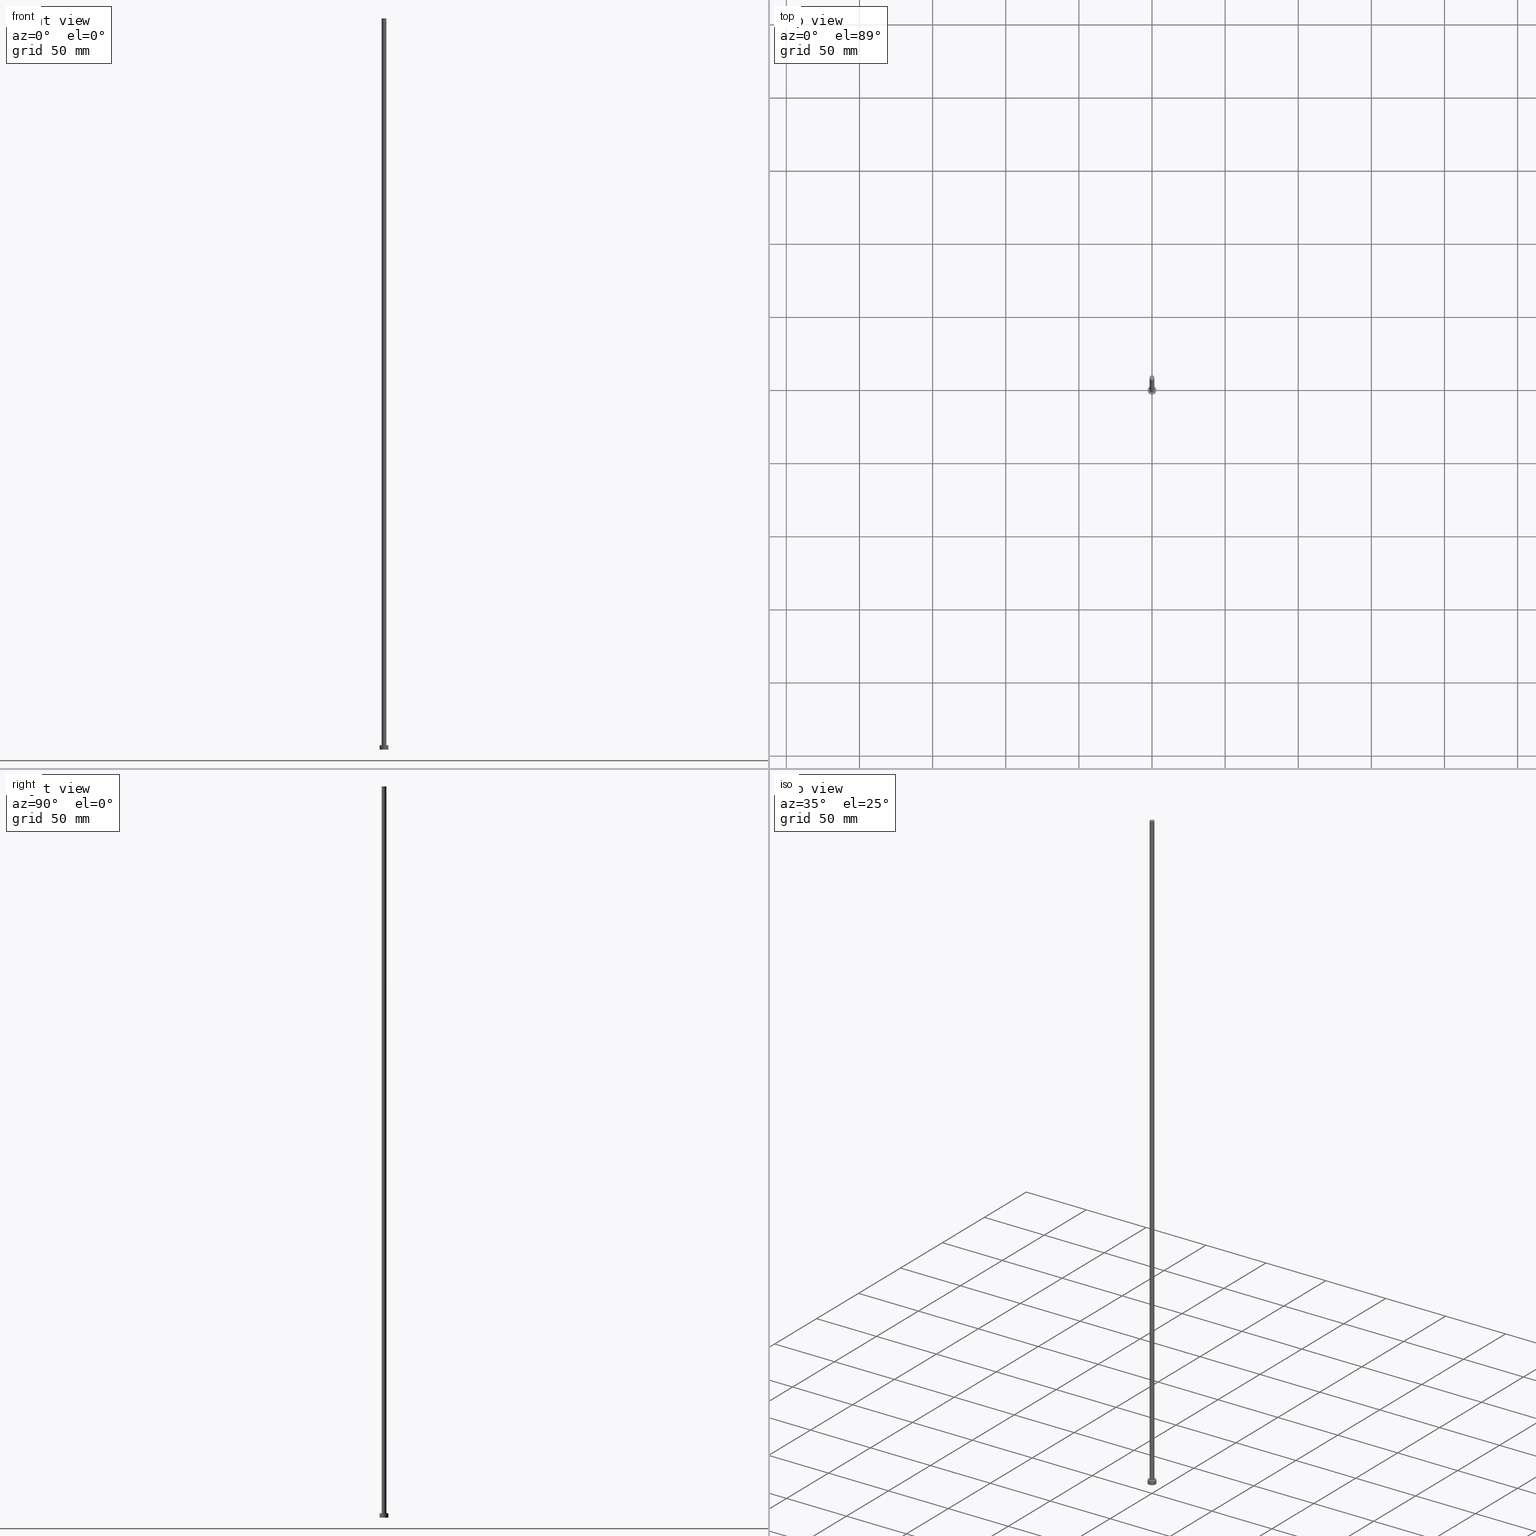
[diagram: canonical four-view strip — front | top / right | iso, engineering-drawing reading convention]
A machine part, canonical four-view strip (front | top / right | iso — engineering-drawing reading convention). The complete STEP part file that produces these views, byte-faithful:
ISO-10303-21;
HEADER;
FILE_DESCRIPTION (( 'STEP AP203' ),
    '1' );
FILE_NAME ('ac31.STEP',
    '2023-02-12T12:43:35',
    ( '' ),
    ( '' ),
    'SwSTEP 2.0',
    'SolidWorks 2019',
    '' );
FILE_SCHEMA (( 'CONFIG_CONTROL_DESIGN' ));
ENDSEC;

DATA;
#1 =( NAMED_UNIT ( * ) PLANE_ANGLE_UNIT ( ) SI_UNIT ( $, .RADIAN. ) );
#2 = LINE ( 'NONE', #32, #189 ) ;
#3 = DIRECTION ( 'NONE',  ( 1.000000000000000000, 0.000000000000000000, 0.000000000000000000 ) ) ;
#4 = LOCAL_TIME ( 13, 43, 35.00000000000000000, #50 ) ;
#5 = DIRECTION ( 'NONE',  ( -0.000000000000000000, -0.000000000000000000, -1.000000000000000000 ) ) ;
#6 = AXIS2_PLACEMENT_3D ( 'NONE', #220, #129, #8 ) ;
#7 = VECTOR ( 'NONE', #174, 1000.000000000000000 ) ;
#8 = DIRECTION ( 'NONE',  ( 1.000000000000000000, 0.000000000000000000, 0.000000000000000000 ) ) ;
#9 = DIRECTION ( 'NONE',  ( 0.000000000000000000, 0.000000000000000000, 1.000000000000000000 ) ) ;
#10 = PERSON_AND_ORGANIZATION_ROLE ( 'design_supplier' ) ;
#11 = PERSON_AND_ORGANIZATION ( #108, #245 ) ;
#12 = COORDINATED_UNIVERSAL_TIME_OFFSET ( 1, 0, .AHEAD. ) ;
#13 = EDGE_CURVE ( 'NONE', #122, #213, #21, .T. ) ;
#14 = ORIENTED_EDGE ( 'NONE', *, *, #45, .T. ) ;
#15 = EDGE_LOOP ( 'NONE', ( #249, #86 ) ) ;
#16 = AXIS2_PLACEMENT_3D ( 'NONE', #80, #103, #82 ) ;
#17 = CARTESIAN_POINT ( 'NONE',  ( 0.000000000000000000, 0.000000000000000000, 3.000000000000000000 ) ) ;
#18 = VERTEX_POINT ( 'NONE', #149 ) ;
#19 = FACE_OUTER_BOUND ( 'NONE', #104, .T. ) ;
#20 = ORIENTED_EDGE ( 'NONE', *, *, #247, .F. ) ;
#21 = CIRCLE ( 'NONE', #51, 3.000000000000000444 ) ;
#22 = CARTESIAN_POINT ( 'NONE',  ( 0.000000000000000000, 0.000000000000000000, 500.0000000000000000 ) ) ;
#23 = ORIENTED_EDGE ( 'NONE', *, *, #136, .T. ) ;
#24 = CC_DESIGN_DATE_AND_TIME_ASSIGNMENT ( #227, #160, ( #138 ) ) ;
#25 = DIRECTION ( 'NONE',  ( -0.000000000000000000, -0.000000000000000000, -1.000000000000000000 ) ) ;
#26 = DIRECTION ( 'NONE',  ( 1.000000000000000000, 0.000000000000000000, 0.000000000000000000 ) ) ;
#27 = VECTOR ( 'NONE', #5, 1000.000000000000000 ) ;
#28 = CARTESIAN_POINT ( 'NONE',  ( -1.600000000000000089, 0.000000000000000000, 500.0000000000000000 ) ) ;
#29 = DIRECTION ( 'NONE',  ( 1.000000000000000000, 0.000000000000000000, -0.000000000000000000 ) ) ;
#30 = CARTESIAN_POINT ( 'NONE',  ( 0.000000000000000000, 0.000000000000000000, 3.000000000000000000 ) ) ;
#31 = CIRCLE ( 'NONE', #199, 1.600000000000000089 ) ;
#32 = CARTESIAN_POINT ( 'NONE',  ( -3.000000000000000444, 0.000000000000000000, 3.000000000000000000 ) ) ;
#33 = AXIS2_PLACEMENT_3D ( 'NONE', #165, #212, #38 ) ;
#34 = PERSON_AND_ORGANIZATION_ROLE ( 'creator' ) ;
#35 = APPLICATION_PROTOCOL_DEFINITION ( 'international standard', 'config_control_design', 1994, #225 ) ;
#36 = DATE_AND_TIME ( #114, #66 ) ;
#37 = APPROVAL_DATE_TIME ( #95, #153 ) ;
#38 = DIRECTION ( 'NONE',  ( 1.000000000000000000, 0.000000000000000000, -0.000000000000000000 ) ) ;
#39 = EDGE_LOOP ( 'NONE', ( #222, #84, #166, #23 ) ) ;
#40 = DIRECTION ( 'NONE',  ( -0.000000000000000000, -0.000000000000000000, -1.000000000000000000 ) ) ;
#41 = EDGE_LOOP ( 'NONE', ( #14, #79 ) ) ;
#42 = EDGE_LOOP ( 'NONE', ( #203, #187 ) ) ;
#43 = AXIS2_PLACEMENT_3D ( 'NONE', #154, #9, #109 ) ;
#44 = DIRECTION ( 'NONE',  ( 1.000000000000000000, 0.000000000000000000, -0.000000000000000000 ) ) ;
#45 = EDGE_CURVE ( 'NONE', #133, #185, #31, .T. ) ;
#46 = ADVANCED_FACE ( 'NONE', ( #197 ), #57, .T. ) ;
#47 = ORIENTED_EDGE ( 'NONE', *, *, #119, .F. ) ;
#48 = LINE ( 'NONE', #141, #178 ) ;
#49 = AXIS2_PLACEMENT_3D ( 'NONE', #56, #151, #26 ) ;
#50 = COORDINATED_UNIVERSAL_TIME_OFFSET ( 1, 0, .AHEAD. ) ;
#51 = AXIS2_PLACEMENT_3D ( 'NONE', #164, #55, #235 ) ;
#52 = COORDINATED_UNIVERSAL_TIME_OFFSET ( 1, 0, .AHEAD. ) ;
#53 = APPROVAL_ROLE ( '' ) ;
#54 = FACE_BOUND ( 'NONE', #15, .T. ) ;
#55 = DIRECTION ( 'NONE',  ( 0.000000000000000000, 0.000000000000000000, 1.000000000000000000 ) ) ;
#56 = CARTESIAN_POINT ( 'NONE',  ( 0.000000000000000000, 0.000000000000000000, 0.000000000000000000 ) ) ;
#57 = CYLINDRICAL_SURFACE ( 'NONE', #97, 1.600000000000000089 ) ;
#58 = VERTEX_POINT ( 'NONE', #254 ) ;
#59 = DIRECTION ( 'NONE',  ( 0.000000000000000000, 0.000000000000000000, 1.000000000000000000 ) ) ;
#60 = ORIENTED_EDGE ( 'NONE', *, *, #120, .T. ) ;
#61 = CIRCLE ( 'NONE', #130, 1.600000000000000089 ) ;
#62 = ORIENTED_EDGE ( 'NONE', *, *, #247, .T. ) ;
#63 =( LENGTH_UNIT ( ) NAMED_UNIT ( * ) SI_UNIT ( .MILLI., .METRE. ) );
#64 = DIRECTION ( 'NONE',  ( -0.000000000000000000, -0.000000000000000000, -1.000000000000000000 ) ) ;
#65 = ADVANCED_FACE ( 'NONE', ( #181 ), #246, .F. ) ;
#66 = LOCAL_TIME ( 13, 43, 35.00000000000000000, #52 ) ;
#67 = EDGE_CURVE ( 'NONE', #202, #131, #159, .T. ) ;
#68 = PRODUCT ( 'ac31', 'ac31', '', ( #228 ) ) ;
#69 = APPLICATION_CONTEXT ( 'configuration controlled 3d designs of mechanical parts and assemblies' ) ;
#70 = PRODUCT_DEFINITION ( 'NEZN�M�', '', #89, #113 ) ;
#71 = APPROVAL_DATE_TIME ( #116, #125 ) ;
#72 = PRODUCT_DEFINITION_SHAPE ( 'NONE', 'NONE',  #70 ) ;
#73 = APPROVAL_STATUS ( 'not_yet_approved' ) ;
#74 = APPROVAL ( #73, 'NEUR�EN�' ) ;
#75 = APPROVAL_ROLE ( '' ) ;
#76 = COORDINATED_UNIVERSAL_TIME_OFFSET ( 1, 0, .AHEAD. ) ;
#77 = CARTESIAN_POINT ( 'NONE',  ( 0.000000000000000000, 0.000000000000000000, 0.000000000000000000 ) ) ;
#78 = AXIS2_PLACEMENT_3D ( 'NONE', #17, #40, #123 ) ;
#79 = ORIENTED_EDGE ( 'NONE', *, *, #190, .T. ) ;
#80 = CARTESIAN_POINT ( 'NONE',  ( 0.000000000000000000, 0.000000000000000000, 500.0000000000000000 ) ) ;
#81 = UNCERTAINTY_MEASURE_WITH_UNIT (LENGTH_MEASURE( 1.000000000000000082E-05 ), #63, 'distance_accuracy_value', 'NONE');
#82 = DIRECTION ( 'NONE',  ( -1.000000000000000000, 0.000000000000000000, 0.000000000000000000 ) ) ;
#83 = ORIENTED_EDGE ( 'NONE', *, *, #207, .F. ) ;
#84 = ORIENTED_EDGE ( 'NONE', *, *, #45, .F. ) ;
#85 = AXIS2_PLACEMENT_3D ( 'NONE', #121, #195, #234 ) ;
#86 = ORIENTED_EDGE ( 'NONE', *, *, #120, .F. ) ;
#87 = LOCAL_TIME ( 13, 43, 35.00000000000000000, #76 ) ;
#88 = ADVANCED_BREP_SHAPE_REPRESENTATION ( 'ac31', ( #134, #6 ), #176 ) ;
#89 = PRODUCT_DEFINITION_FORMATION_WITH_SPECIFIED_SOURCE ( 'LIBOVOLN�', '', #68, .NOT_KNOWN. ) ;
#90 = CC_DESIGN_PERSON_AND_ORGANIZATION_ASSIGNMENT ( #230, #177, ( #138 ) ) ;
#91 = AXIS2_PLACEMENT_3D ( 'NONE', #219, #171, #44 ) ;
#92 = APPLICATION_PROTOCOL_DEFINITION ( 'international standard', 'config_control_design', 1994, #69 ) ;
#93 = CARTESIAN_POINT ( 'NONE',  ( -3.000000000000000444, 0.000000000000000000, 3.000000000000000000 ) ) ;
#94 = LINE ( 'NONE', #175, #27 ) ;
#95 = DATE_AND_TIME ( #211, #218 ) ;
#96 = PERSON_AND_ORGANIZATION ( #108, #245 ) ;
#97 = AXIS2_PLACEMENT_3D ( 'NONE', #150, #126, #198 ) ;
#98 = CC_DESIGN_PERSON_AND_ORGANIZATION_ASSIGNMENT ( #118, #10, ( #89 ) ) ;
#99 = COORDINATED_UNIVERSAL_TIME_OFFSET ( 1, 0, .AHEAD. ) ;
#100 = FACE_OUTER_BOUND ( 'NONE', #102, .T. ) ;
#101 = ORIENTED_EDGE ( 'NONE', *, *, #67, .F. ) ;
#102 = EDGE_LOOP ( 'NONE', ( #101, #196, #127, #47 ) ) ;
#103 = DIRECTION ( 'NONE',  ( -0.000000000000000000, -0.000000000000000000, -1.000000000000000000 ) ) ;
#104 = EDGE_LOOP ( 'NONE', ( #240, #253, #60, #215 ) ) ;
#105 = ORIENTED_EDGE ( 'NONE', *, *, #147, .F. ) ;
#106 = DIRECTION ( 'NONE',  ( -1.000000000000000000, 0.000000000000000000, 0.000000000000000000 ) ) ;
#107 = APPROVAL_PERSON_ORGANIZATION ( #11, #74, #53 ) ;
#108 = PERSON ( 'NEUR�EN�', 'NEUR�EN�', 'NEUR�EN�', ('NEUR�EN�'), ('NEUR�EN�'), ('NEUR�EN�') ) ;
#109 = DIRECTION ( 'NONE',  ( 1.000000000000000000, 0.000000000000000000, 0.000000000000000000 ) ) ;
#110 = DIRECTION ( 'NONE',  ( 1.000000000000000000, 0.000000000000000000, 0.000000000000000000 ) ) ;
#111 = CC_DESIGN_PERSON_AND_ORGANIZATION_ASSIGNMENT ( #158, #34, ( #70 ) ) ;
#112 = DIRECTION ( 'NONE',  ( 0.000000000000000000, 0.000000000000000000, 1.000000000000000000 ) ) ;
#113 = DESIGN_CONTEXT ( 'detailed design', #225, 'design' ) ;
#114 = CALENDAR_DATE ( 2023, 12, 2 ) ;
#115 = CALENDAR_DATE ( 2023, 12, 2 ) ;
#116 = DATE_AND_TIME ( #243, #4 ) ;
#117 = DATE_AND_TIME ( #115, #239 ) ;
#118 = PERSON_AND_ORGANIZATION ( #108, #245 ) ;
#119 = EDGE_CURVE ( 'NONE', #131, #213, #2, .T. ) ;
#120 = EDGE_CURVE ( 'NONE', #58, #18, #61, .T. ) ;
#121 = CARTESIAN_POINT ( 'NONE',  ( 0.000000000000000000, 0.000000000000000000, 3.000000000000000000 ) ) ;
#122 = VERTEX_POINT ( 'NONE', #155 ) ;
#123 = DIRECTION ( 'NONE',  ( -1.000000000000000000, 0.000000000000000000, 0.000000000000000000 ) ) ;
#124 = ORIENTED_EDGE ( 'NONE', *, *, #13, .F. ) ;
#125 = APPROVAL ( #142, 'NEUR�EN�' ) ;
#126 = DIRECTION ( 'NONE',  ( -0.000000000000000000, -0.000000000000000000, -1.000000000000000000 ) ) ;
#127 = ORIENTED_EDGE ( 'NONE', *, *, #13, .T. ) ;
#128 = AXIS2_PLACEMENT_3D ( 'NONE', #77, #157, #29 ) ;
#129 = DIRECTION ( 'NONE',  ( 0.000000000000000000, 0.000000000000000000, 1.000000000000000000 ) ) ;
#130 = AXIS2_PLACEMENT_3D ( 'NONE', #226, #112, #3 ) ;
#131 = VERTEX_POINT ( 'NONE', #93 ) ;
#132 = CARTESIAN_POINT ( 'NONE',  ( 0.000000000000000000, 0.000000000000000000, 3.000000000000000000 ) ) ;
#133 = VERTEX_POINT ( 'NONE', #206 ) ;
#134 = MANIFOLD_SOLID_BREP ( 'P�idat vysunut�m3', #144 ) ;
#135 = LINE ( 'NONE', #28, #7 ) ;
#136 = EDGE_CURVE ( 'NONE', #18, #58, #221, .T. ) ;
#137 = CC_DESIGN_APPROVAL ( #74, ( #138 ) ) ;
#138 = SECURITY_CLASSIFICATION ( '', '', #244 ) ;
#139 = PERSON_AND_ORGANIZATION ( #108, #245 ) ;
#140 = CIRCLE ( 'NONE', #49, 3.000000000000000444 ) ;
#141 = CARTESIAN_POINT ( 'NONE',  ( 1.600000000000000089, 1.959434878635764737E-16, 500.0000000000000000 ) ) ;
#142 = APPROVAL_STATUS ( 'not_yet_approved' ) ;
#143 = DATE_TIME_ROLE ( 'creation_date' ) ;
#144 = CLOSED_SHELL ( 'NONE', ( #241, #232, #250, #200, #65, #46, #248 ) ) ;
#145 = APPROVAL_STATUS ( 'not_yet_approved' ) ;
#146 = AXIS2_PLACEMENT_3D ( 'NONE', #132, #25, #106 ) ;
#147 = EDGE_CURVE ( 'NONE', #202, #122, #94, .T. ) ;
#148 = PERSON_AND_ORGANIZATION_ROLE ( 'creator' ) ;
#149 = CARTESIAN_POINT ( 'NONE',  ( -1.600000000000000089, 0.000000000000000000, 3.000000000000000000 ) ) ;
#150 = CARTESIAN_POINT ( 'NONE',  ( 0.000000000000000000, 0.000000000000000000, 500.0000000000000000 ) ) ;
#151 = DIRECTION ( 'NONE',  ( 0.000000000000000000, 0.000000000000000000, 1.000000000000000000 ) ) ;
#152 = FACE_OUTER_BOUND ( 'NONE', #255, .T. ) ;
#153 = APPROVAL ( #145, 'NEUR�EN�' ) ;
#154 = CARTESIAN_POINT ( 'NONE',  ( 0.000000000000000000, 0.000000000000000000, 3.000000000000000000 ) ) ;
#155 = CARTESIAN_POINT ( 'NONE',  ( 3.000000000000000444, 3.673940397442060361E-16, 0.000000000000000000 ) ) ;
#156 = CC_DESIGN_DATE_AND_TIME_ASSIGNMENT ( #117, #143, ( #70 ) ) ;
#157 = DIRECTION ( 'NONE',  ( 0.000000000000000000, 0.000000000000000000, 1.000000000000000000 ) ) ;
#158 = PERSON_AND_ORGANIZATION ( #108, #245 ) ;
#159 = CIRCLE ( 'NONE', #43, 3.000000000000000444 ) ;
#160 = DATE_TIME_ROLE ( 'classification_date' ) ;
#161 = CIRCLE ( 'NONE', #204, 1.600000000000000089 ) ;
#162 = CC_DESIGN_APPROVAL ( #125, ( #89 ) ) ;
#163 = CYLINDRICAL_SURFACE ( 'NONE', #78, 3.000000000000000444 ) ;
#164 = CARTESIAN_POINT ( 'NONE',  ( 0.000000000000000000, 0.000000000000000000, 0.000000000000000000 ) ) ;
#165 = CARTESIAN_POINT ( 'NONE',  ( 0.000000000000000000, 0.000000000000000000, 3.000000000000000000 ) ) ;
#166 = ORIENTED_EDGE ( 'NONE', *, *, #188, .T. ) ;
#167 = DIRECTION ( 'NONE',  ( 1.000000000000000000, 0.000000000000000000, 0.000000000000000000 ) ) ;
#168 = FACE_OUTER_BOUND ( 'NONE', #41, .T. ) ;
#169 = CC_DESIGN_SECURITY_CLASSIFICATION ( #138, ( #89 ) ) ;
#170 = EDGE_CURVE ( 'NONE', #185, #58, #48, .T. ) ;
#171 = DIRECTION ( 'NONE',  ( 0.000000000000000000, 0.000000000000000000, 1.000000000000000000 ) ) ;
#172 = CYLINDRICAL_SURFACE ( 'NONE', #146, 3.000000000000000444 ) ;
#173 = CC_DESIGN_PERSON_AND_ORGANIZATION_ASSIGNMENT ( #139, #229, ( #68 ) ) ;
#174 = DIRECTION ( 'NONE',  ( -0.000000000000000000, -0.000000000000000000, -1.000000000000000000 ) ) ;
#175 = CARTESIAN_POINT ( 'NONE',  ( 3.000000000000000444, 3.673940397442060361E-16, 3.000000000000000000 ) ) ;
#176 =( GEOMETRIC_REPRESENTATION_CONTEXT ( 3 ) GLOBAL_UNCERTAINTY_ASSIGNED_CONTEXT ( ( #81 ) ) GLOBAL_UNIT_ASSIGNED_CONTEXT ( ( #63, #1, #224 ) ) REPRESENTATION_CONTEXT ( 'NONE', 'WORKASPACE' ) );
#177 = PERSON_AND_ORGANIZATION_ROLE ( 'classification_officer' ) ;
#178 = VECTOR ( 'NONE', #208, 1000.000000000000000 ) ;
#179 = APPROVAL_PERSON_ORGANIZATION ( #233, #153, #75 ) ;
#180 = PERSON_AND_ORGANIZATION ( #108, #245 ) ;
#181 = FACE_OUTER_BOUND ( 'NONE', #194, .T. ) ;
#182 = PLANE ( 'NONE',  #33 ) ;
#183 = CARTESIAN_POINT ( 'NONE',  ( 3.000000000000000444, 3.673940397442060361E-16, 3.000000000000000000 ) ) ;
#184 = CC_DESIGN_APPROVAL ( #153, ( #70 ) ) ;
#185 = VERTEX_POINT ( 'NONE', #223 ) ;
#186 = PLANE ( 'NONE',  #91 ) ;
#187 = ORIENTED_EDGE ( 'NONE', *, *, #67, .T. ) ;
#188 = EDGE_CURVE ( 'NONE', #133, #18, #135, .T. ) ;
#189 = VECTOR ( 'NONE', #64, 1000.000000000000000 ) ;
#190 = EDGE_CURVE ( 'NONE', #185, #133, #161, .T. ) ;
#191 = DIRECTION ( 'NONE',  ( 0.000000000000000000, 0.000000000000000000, 1.000000000000000000 ) ) ;
#192 = CALENDAR_DATE ( 2023, 12, 2 ) ;
#193 = APPROVAL_DATE_TIME ( #36, #74 ) ;
#194 = EDGE_LOOP ( 'NONE', ( #20, #124 ) ) ;
#195 = DIRECTION ( 'NONE',  ( 0.000000000000000000, 0.000000000000000000, 1.000000000000000000 ) ) ;
#196 = ORIENTED_EDGE ( 'NONE', *, *, #147, .T. ) ;
#197 = FACE_OUTER_BOUND ( 'NONE', #39, .T. ) ;
#198 = DIRECTION ( 'NONE',  ( -1.000000000000000000, 0.000000000000000000, 0.000000000000000000 ) ) ;
#199 = AXIS2_PLACEMENT_3D ( 'NONE', #22, #237, #217 ) ;
#200 = ADVANCED_FACE ( 'NONE', ( #54, #201 ), #182, .T. ) ;
#201 = FACE_OUTER_BOUND ( 'NONE', #42, .T. ) ;
#202 = VERTEX_POINT ( 'NONE', #183 ) ;
#203 = ORIENTED_EDGE ( 'NONE', *, *, #207, .T. ) ;
#204 = AXIS2_PLACEMENT_3D ( 'NONE', #216, #59, #167 ) ;
#205 = APPROVAL_PERSON_ORGANIZATION ( #96, #125, #209 ) ;
#206 = CARTESIAN_POINT ( 'NONE',  ( -1.600000000000000089, 0.000000000000000000, 500.0000000000000000 ) ) ;
#207 = EDGE_CURVE ( 'NONE', #131, #202, #238, .T. ) ;
#208 = DIRECTION ( 'NONE',  ( -0.000000000000000000, -0.000000000000000000, -1.000000000000000000 ) ) ;
#209 = APPROVAL_ROLE ( '' ) ;
#210 = CC_DESIGN_PERSON_AND_ORGANIZATION_ASSIGNMENT ( #180, #148, ( #89 ) ) ;
#211 = CALENDAR_DATE ( 2023, 12, 2 ) ;
#212 = DIRECTION ( 'NONE',  ( 0.000000000000000000, 0.000000000000000000, 1.000000000000000000 ) ) ;
#213 = VERTEX_POINT ( 'NONE', #236 ) ;
#214 = PRODUCT_RELATED_PRODUCT_CATEGORY ( 'detail', '', ( #68 ) ) ;
#215 = ORIENTED_EDGE ( 'NONE', *, *, #188, .F. ) ;
#216 = CARTESIAN_POINT ( 'NONE',  ( 0.000000000000000000, 0.000000000000000000, 500.0000000000000000 ) ) ;
#217 = DIRECTION ( 'NONE',  ( 1.000000000000000000, 0.000000000000000000, 0.000000000000000000 ) ) ;
#218 = LOCAL_TIME ( 13, 43, 35.00000000000000000, #99 ) ;
#219 = CARTESIAN_POINT ( 'NONE',  ( 0.000000000000000000, 0.000000000000000000, 500.0000000000000000 ) ) ;
#220 = CARTESIAN_POINT ( 'NONE',  ( 0.000000000000000000, 0.000000000000000000, 0.000000000000000000 ) ) ;
#221 = CIRCLE ( 'NONE', #242, 1.600000000000000089 ) ;
#222 = ORIENTED_EDGE ( 'NONE', *, *, #170, .F. ) ;
#223 = CARTESIAN_POINT ( 'NONE',  ( 1.600000000000000089, 1.959434878635764737E-16, 500.0000000000000000 ) ) ;
#224 =( NAMED_UNIT ( * ) SI_UNIT ( $, .STERADIAN. ) SOLID_ANGLE_UNIT ( ) );
#225 = APPLICATION_CONTEXT ( 'configuration controlled 3d designs of mechanical parts and assemblies' ) ;
#226 = CARTESIAN_POINT ( 'NONE',  ( 0.000000000000000000, 0.000000000000000000, 3.000000000000000000 ) ) ;
#227 = DATE_AND_TIME ( #192, #87 ) ;
#228 = MECHANICAL_CONTEXT ( 'NONE', #69, 'mechanical' ) ;
#229 = PERSON_AND_ORGANIZATION_ROLE ( 'design_owner' ) ;
#230 = PERSON_AND_ORGANIZATION ( #108, #245 ) ;
#231 = SHAPE_DEFINITION_REPRESENTATION ( #72, #88 ) ;
#232 = ADVANCED_FACE ( 'NONE', ( #100 ), #163, .T. ) ;
#233 = PERSON_AND_ORGANIZATION ( #108, #245 ) ;
#234 = DIRECTION ( 'NONE',  ( 1.000000000000000000, 0.000000000000000000, 0.000000000000000000 ) ) ;
#235 = DIRECTION ( 'NONE',  ( 1.000000000000000000, 0.000000000000000000, 0.000000000000000000 ) ) ;
#236 = CARTESIAN_POINT ( 'NONE',  ( -3.000000000000000444, 0.000000000000000000, 0.000000000000000000 ) ) ;
#237 = DIRECTION ( 'NONE',  ( 0.000000000000000000, 0.000000000000000000, 1.000000000000000000 ) ) ;
#238 = CIRCLE ( 'NONE', #85, 3.000000000000000444 ) ;
#239 = LOCAL_TIME ( 13, 43, 35.00000000000000000, #12 ) ;
#240 = ORIENTED_EDGE ( 'NONE', *, *, #190, .F. ) ;
#241 = ADVANCED_FACE ( 'NONE', ( #19 ), #251, .T. ) ;
#242 = AXIS2_PLACEMENT_3D ( 'NONE', #30, #191, #110 ) ;
#243 = CALENDAR_DATE ( 2023, 12, 2 ) ;
#244 = SECURITY_CLASSIFICATION_LEVEL ( 'unclassified' ) ;
#245 = ORGANIZATION ( 'NEUR�EN�', 'NEUR�EN�', '' ) ;
#246 = PLANE ( 'NONE',  #128 ) ;
#247 = EDGE_CURVE ( 'NONE', #213, #122, #140, .T. ) ;
#248 = ADVANCED_FACE ( 'NONE', ( #168 ), #186, .T. ) ;
#249 = ORIENTED_EDGE ( 'NONE', *, *, #136, .F. ) ;
#250 = ADVANCED_FACE ( 'NONE', ( #152 ), #172, .T. ) ;
#251 = CYLINDRICAL_SURFACE ( 'NONE', #16, 1.600000000000000089 ) ;
#252 = ORIENTED_EDGE ( 'NONE', *, *, #119, .T. ) ;
#253 = ORIENTED_EDGE ( 'NONE', *, *, #170, .T. ) ;
#254 = CARTESIAN_POINT ( 'NONE',  ( 1.600000000000000089, 1.959434878635764737E-16, 3.000000000000000000 ) ) ;
#255 = EDGE_LOOP ( 'NONE', ( #105, #83, #252, #62 ) ) ;
ENDSEC;
END-ISO-10303-21;
